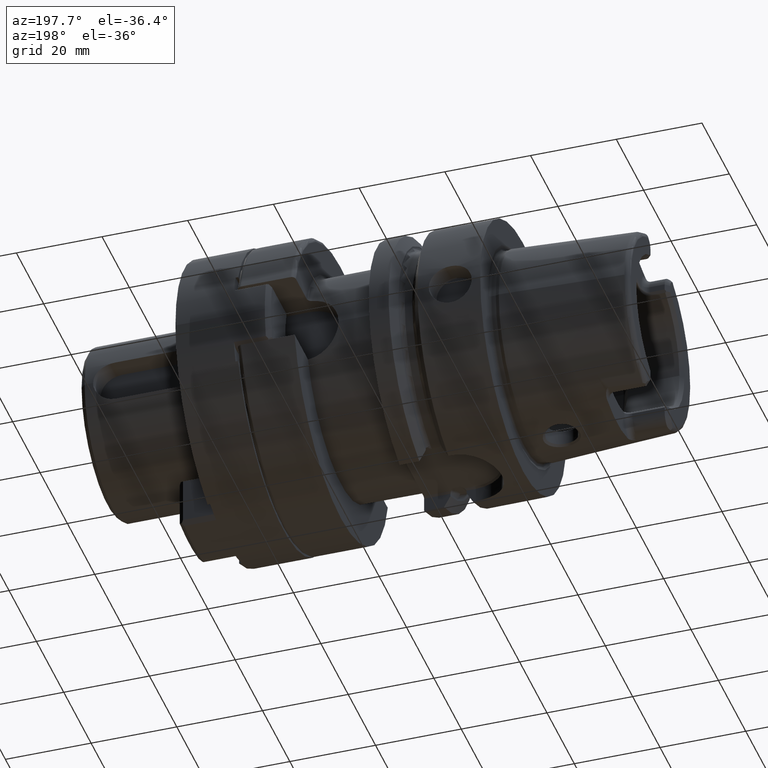
[diagram: clean part render]
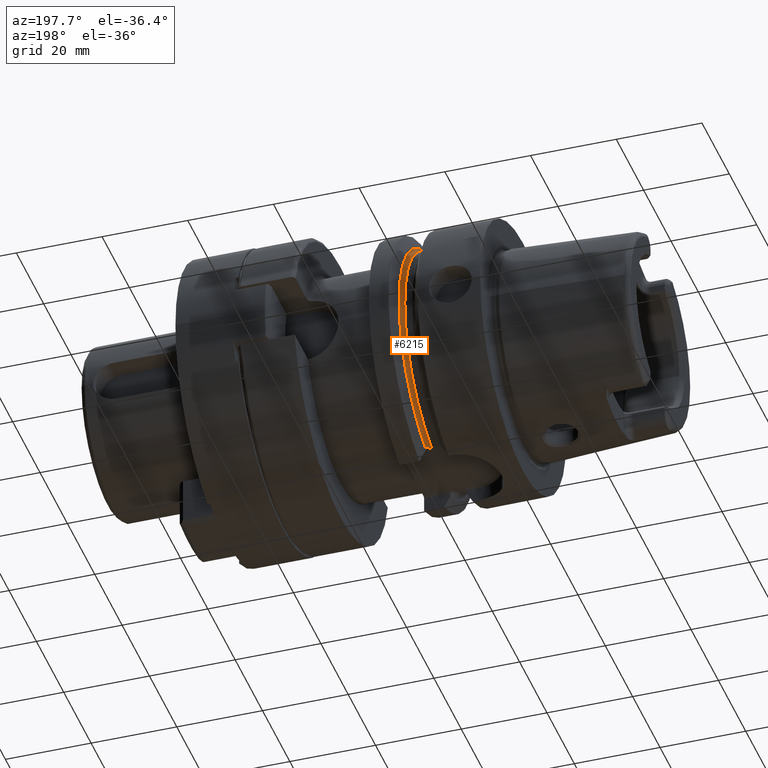
[diagram: same view with one face highlighted and labeled with its STEP entity id]
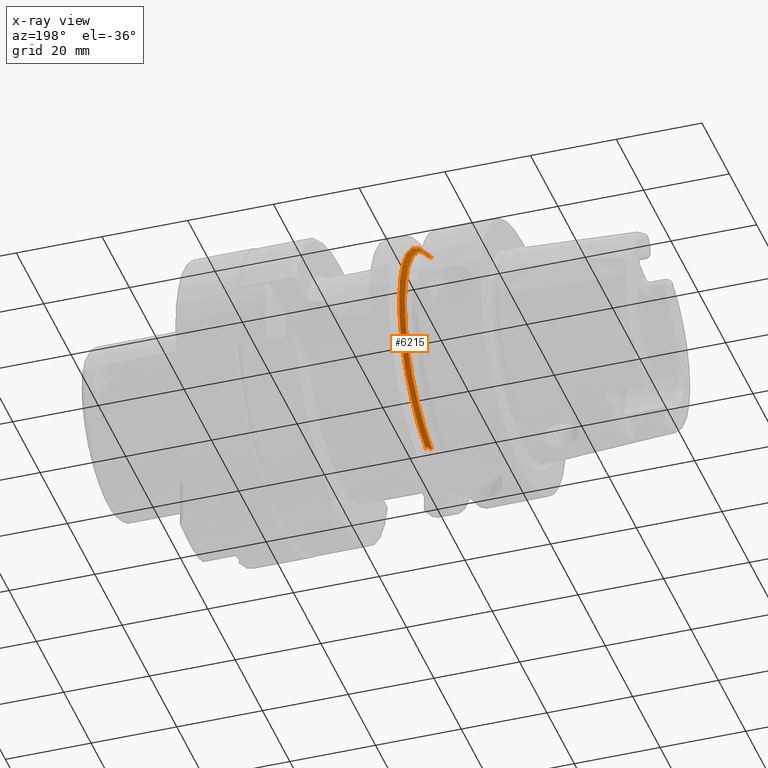
[diagram: x-ray of the same camera — body ghosted, the highlighted face saturated]
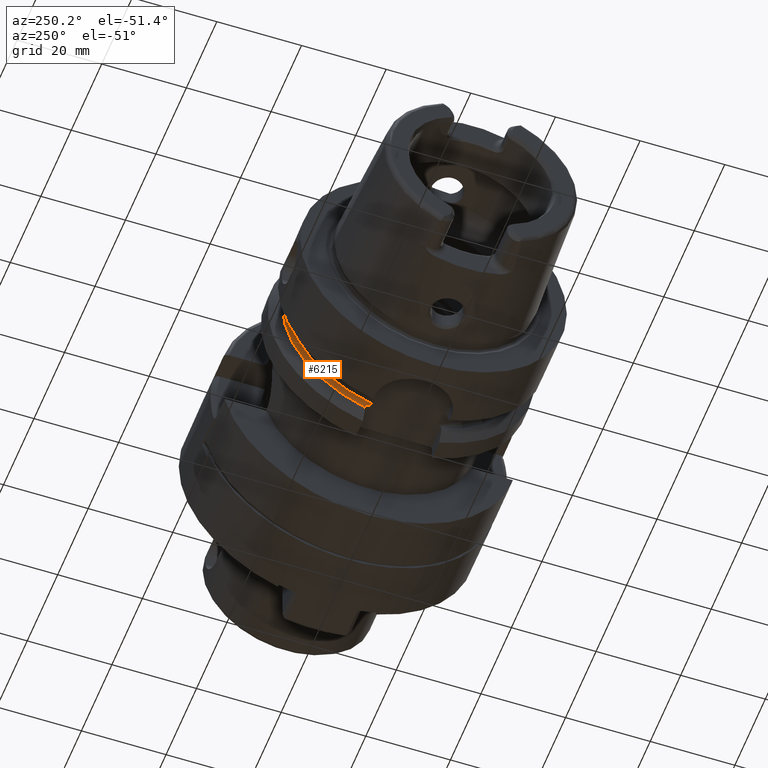
[diagram: same view with one face highlighted and labeled with its STEP entity id]
A machine part, auxiliary view. The second image highlights one B-rep face of the part: STEP entity #6215.
The next image is the same camera in x-ray: the body ghosted, the highlighted face saturated — about 1% of this face is hidden behind the body in this view.
A second angle (auxiliary view) of the same face is appended — the face is thin or edge-on in the first view.
In plain terms, the highlighted toroidal blend (fillet) surface has major radius 28.5 mm and minor (blend) radius 1 mm.
Its self-contained STEP definition (entity closure, byte-faithful):
#2370=CARTESIAN_POINT('',(1.955937686474E1,8.6175E0,-2.64E1));
#2371=CARTESIAN_POINT('',(1.953933692943E1,8.556882809475E0,-2.64E1));
#2372=CARTESIAN_POINT('',(1.949803643853E1,8.440751828791E0,-2.64E1));
#2373=CARTESIAN_POINT('',(1.943198239289E1,8.280902876688E0,-2.64E1));
#2374=CARTESIAN_POINT('',(1.936289962713E1,8.138372043109E0,-2.64E1));
#2375=CARTESIAN_POINT('',(1.929044179409E1,8.012872381152E0,-2.64E1));
#2376=CARTESIAN_POINT('',(1.921473346325E1,7.905832703978E0,-2.64E1));
#2377=CARTESIAN_POINT('',(1.913579091836E1,7.818493807110E0,-2.64E1));
#2378=CARTESIAN_POINT('',(1.905155273254E1,7.751296731883E0,-2.64E1));
#2379=CARTESIAN_POINT('',(1.896325315553E1,7.709235333598E0,-2.64E1));
#2380=CARTESIAN_POINT('',(1.890455004185E1,7.7E0,-2.64E1));
#2381=CARTESIAN_POINT('',(1.8875E1,7.7E0,-2.64E1));
#2383=CARTESIAN_POINT('',(1.9875E1,9.0175E0,-2.703580392276E1));
#2384=CARTESIAN_POINT('',(1.9875E1,9.0175E0,-2.699613604002E1));
#2385=CARTESIAN_POINT('',(1.987076568653E1,9.0175E0,-2.691717027896E1));
#2386=CARTESIAN_POINT('',(1.985814679598E1,9.0175E0,-2.683892787393E1));
#2387=CARTESIAN_POINT('',(1.984968305988E1,9.0175E0,-2.68E1));
#2389=CARTESIAN_POINT('',(1.9875E1,0.E0,0.E0));
#2390=DIRECTION('',(1.E0,0.E0,0.E0));
#2391=DIRECTION('',(0.E0,3.164035087719E-1,-9.486246990443E-1));
#2392=AXIS2_PLACEMENT_3D('',#2389,#2390,#2391);
#2394=CARTESIAN_POINT('',(1.929088689054E1,8.0175E0,2.64E1));
#2395=CARTESIAN_POINT('',(1.934732588511E1,8.0175E0,2.642697420806E1));
#2396=CARTESIAN_POINT('',(1.945423725332E1,8.0175E0,2.649098268241E1));
#2397=CARTESIAN_POINT('',(1.960014677433E1,8.0175E0,2.662135571433E1));
#2398=CARTESIAN_POINT('',(1.971903352831E1,8.0175E0,2.677824571286E1));
#2399=CARTESIAN_POINT('',(1.980690666168E1,8.0175E0,2.695352660694E1));
#2400=CARTESIAN_POINT('',(1.986265408780E1,8.0175E0,2.714852340969E1));
#2401=CARTESIAN_POINT('',(1.9875E1,8.0175E0,2.728117257592E1));
#2402=CARTESIAN_POINT('',(1.9875E1,8.0175E0,2.734903460362E1));
#2404=CARTESIAN_POINT('',(1.8875E1,7.7E0,2.64E1));
#2405=CARTESIAN_POINT('',(1.890430468861E1,7.7E0,2.64E1));
#2406=CARTESIAN_POINT('',(1.896290280766E1,7.708993215977E0,2.64E1));
#2407=CARTESIAN_POINT('',(1.905331742183E1,7.752198019553E0,2.64E1));
#2408=CARTESIAN_POINT('',(1.913860453300E1,7.821194226188E0,2.64E1));
#2409=CARTESIAN_POINT('',(1.921661446474E1,7.908317855978E0,2.64E1));
#2410=CARTESIAN_POINT('',(1.926649394598E1,7.979111722839E0,2.64E1));
#2411=CARTESIAN_POINT('',(1.929088689054E1,8.0175E0,2.64E1));
#2413=CARTESIAN_POINT('',(1.8875E1,0.E0,0.E0));
#2414=DIRECTION('',(-1.E0,0.E0,0.E0));
#2415=DIRECTION('',(0.E0,2.8E-1,9.6E-1));
#2416=AXIS2_PLACEMENT_3D('',#2413,#2414,#2415);
#2488=CARTESIAN_POINT('',(1.984968305988E1,9.0175E0,-2.68E1));
#2489=CARTESIAN_POINT('',(1.983437930891E1,8.964833314721E0,-2.674733331472E1));
#2490=CARTESIAN_POINT('',(1.979146258465E1,8.865089106552E0,-2.664758910655E1));
#2491=CARTESIAN_POINT('',(1.969024466840E1,8.727735871157E0,-2.651023587116E1));
#2492=CARTESIAN_POINT('',(1.960597251665E1,8.652184947039E0,-2.643468494704E1));
#2493=CARTESIAN_POINT('',(1.955937686474E1,8.6175E0,-2.64E1));
#3408=VERTEX_POINT('',#2488);
#3409=VERTEX_POINT('',#2493);
#3450=CARTESIAN_POINT('',(1.8875E1,7.7E0,2.64E1));
#3451=VERTEX_POINT('',#3450);
#3454=VERTEX_POINT('',#2411);
#3457=VERTEX_POINT('',#2402);
#3481=CARTESIAN_POINT('',(1.8875E1,7.7E0,-2.64E1));
#3483=VERTEX_POINT('',#3481);
#3485=CARTESIAN_POINT('',(1.9875E1,9.0175E0,-2.703580392276E1));
#3487=VERTEX_POINT('',#3485);
#6199=CARTESIAN_POINT('',(1.8875E1,0.E0,0.E0));
#6200=DIRECTION('',(1.E0,0.E0,0.E0));
#6201=DIRECTION('',(0.E0,-1.E0,0.E0));
#6202=AXIS2_PLACEMENT_3D('',#6199,#6200,#6201);
#6203=TOROIDAL_SURFACE('',#6202,2.85E1,1.E0);
#6204=ORIENTED_EDGE('',*,*,#5147,.F.);
#6206=ORIENTED_EDGE('',*,*,#6205,.F.);
#6207=ORIENTED_EDGE('',*,*,#5082,.F.);
#6208=ORIENTED_EDGE('',*,*,#6167,.T.);
#6209=ORIENTED_EDGE('',*,*,#5910,.F.);
#6210=ORIENTED_EDGE('',*,*,#5243,.F.);
#6212=ORIENTED_EDGE('',*,*,#6211,.T.);
#6213=EDGE_LOOP('',(#6204,#6206,#6207,#6208,#6209,#6210,#6212));
#6214=FACE_OUTER_BOUND('',#6213,.F.);
#6215=ADVANCED_FACE('',(#6214),#6203,.F.);
#2382=B_SPLINE_CURVE_WITH_KNOTS('',3,(#2370,#2371,#2372,#2373,#2374,#2375,#2376,
#2377,#2378,#2379,#2380,#2381),.UNSPECIFIED.,.F.,.F.,(4,1,1,1,1,1,1,1,1,4),
(0.E0,1.111111111111E-1,2.222222222222E-1,3.333333333333E-1,4.444444444444E-1,
5.555555555556E-1,6.666666666667E-1,7.777777777778E-1,8.888888888889E-1,1.E0),
.UNSPECIFIED.);
#2388=B_SPLINE_CURVE_WITH_KNOTS('',3,(#2383,#2384,#2385,#2386,#2387),
.UNSPECIFIED.,.F.,.F.,(4,1,4),(0.E0,5.E-1,1.E0),.UNSPECIFIED.);
#2393=CIRCLE('',#2392,2.85E1);
#2403=B_SPLINE_CURVE_WITH_KNOTS('',3,(#2394,#2395,#2396,#2397,#2398,#2399,#2400,
#2401,#2402),.UNSPECIFIED.,.F.,.F.,(4,1,1,1,1,1,4),(0.E0,1.666666666667E-1,
3.333333333333E-1,5.E-1,6.666666666667E-1,8.333333333333E-1,1.E0),
.UNSPECIFIED.);
#2412=B_SPLINE_CURVE_WITH_KNOTS('',3,(#2404,#2405,#2406,#2407,#2408,#2409,#2410,
#2411),.UNSPECIFIED.,.F.,.F.,(4,1,1,1,1,4),(0.E0,2.E-1,4.E-1,6.E-1,8.E-1,1.E0),
.UNSPECIFIED.);
#2417=CIRCLE('',#2416,2.75E1);
#2494=B_SPLINE_CURVE_WITH_KNOTS('',3,(#2488,#2489,#2490,#2491,#2492,#2493),
.UNSPECIFIED.,.F.,.F.,(4,1,1,4),(0.E0,3.333333333333E-1,6.666666666667E-1,1.E0),
.UNSPECIFIED.);
#5082=EDGE_CURVE('',#3487,#3408,#2388,.T.);
#5147=EDGE_CURVE('',#3409,#3483,#2382,.T.);
#5243=EDGE_CURVE('',#3451,#3454,#2412,.T.);
#5910=EDGE_CURVE('',#3454,#3457,#2403,.T.);
#6167=EDGE_CURVE('',#3487,#3457,#2393,.T.);
#6205=EDGE_CURVE('',#3408,#3409,#2494,.T.);
#6211=EDGE_CURVE('',#3451,#3483,#2417,.T.);